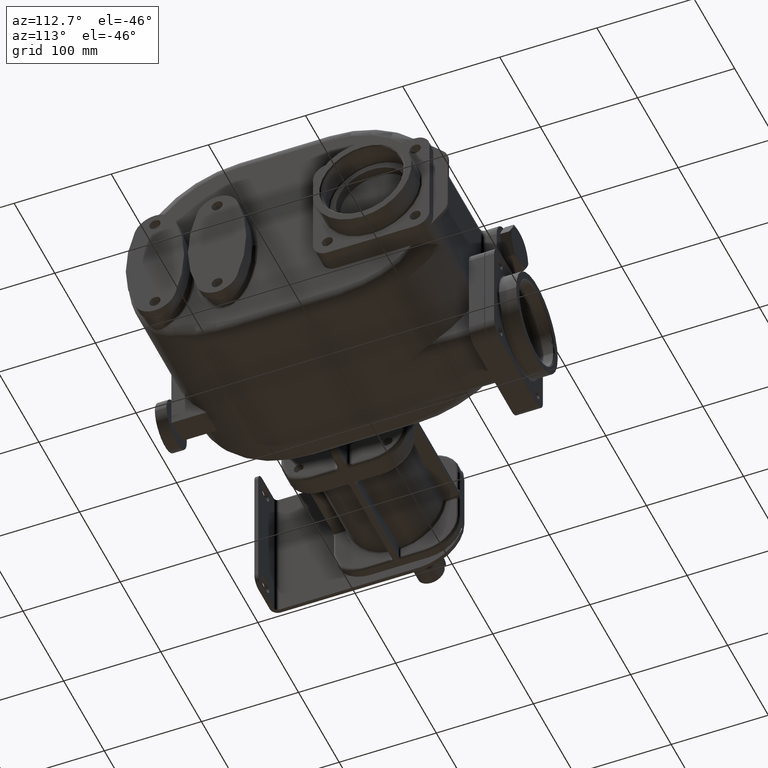
[diagram: clean part render]
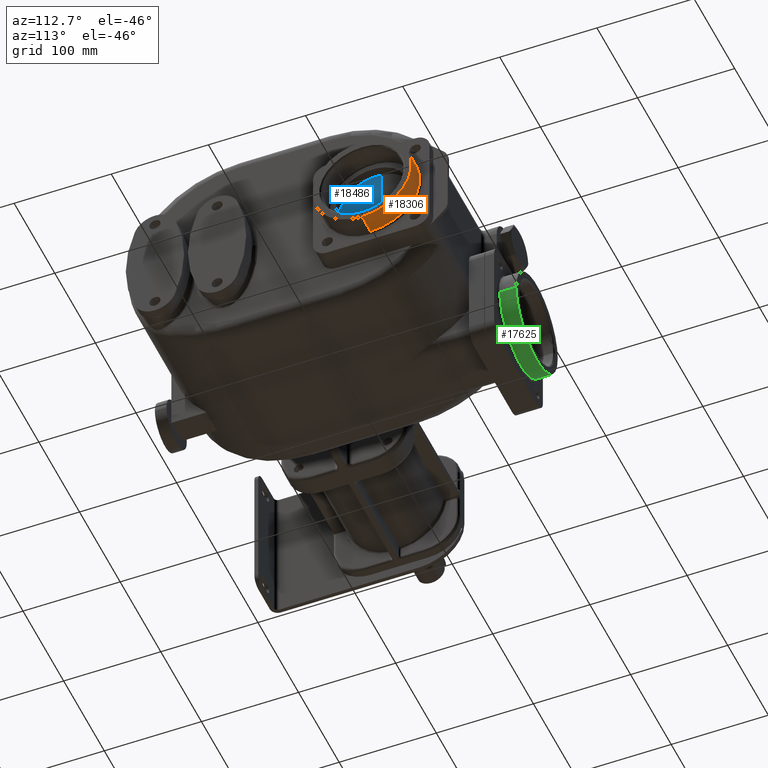
[diagram: same view with three faces highlighted in distinct colors, each labeled with its STEP entity id]
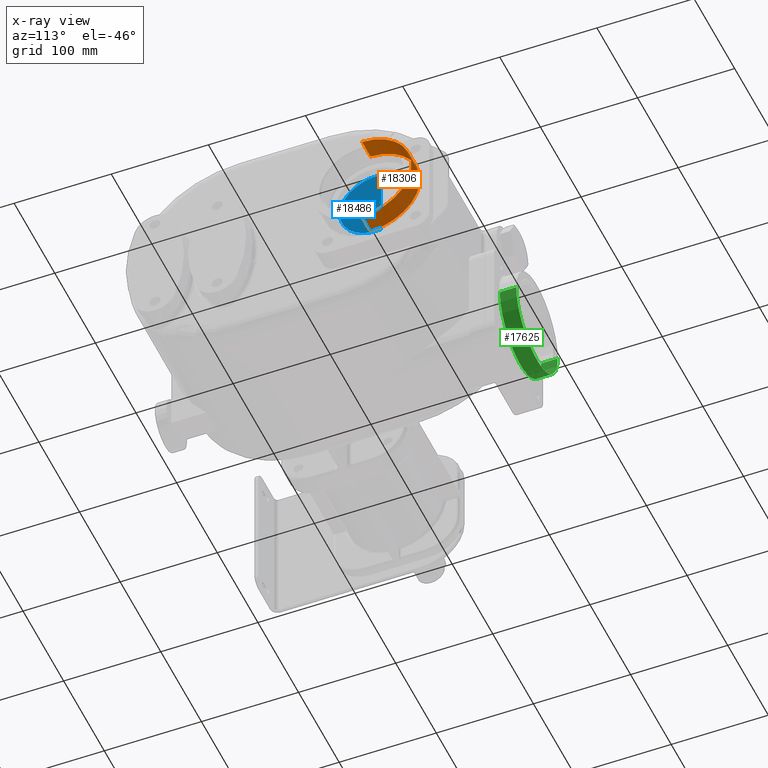
[diagram: x-ray of the same camera — body ghosted, the three highlighted faces saturated]
A machine part, auxiliary view with three faces highlighted in distinct colors.
The next image is the same camera in x-ray (body ghosted, the three faces saturated) — at least one of them is partly hidden behind the body in this view.
Their STEP definitions:

[orange] entity #18306 — the highlighted cylindrical surface (partial cylindrical patch) has radius 51 mm, axis along (1, 0, 0).
#1112=DIRECTION('',(-1.E0,0.E0,0.E0));
#1113=VECTOR('',#1112,2.1E1);
#1114=CARTESIAN_POINT('',(1.775E2,2.65E2,3.7E1));
#1115=LINE('',#1114,#1113);
#1116=DIRECTION('',(-1.E0,0.E0,0.E0));
#1117=VECTOR('',#1116,2.1E1);
#1118=CARTESIAN_POINT('',(1.775E2,2.65E2,-6.5E1));
#1119=LINE('',#1118,#1117);
#1120=CARTESIAN_POINT('',(1.565E2,2.65E2,-1.4E1));
#1121=DIRECTION('',(1.E0,0.E0,0.E0));
#1122=DIRECTION('',(0.E0,0.E0,-1.E0));
#1123=AXIS2_PLACEMENT_3D('',#1120,#1121,#1122);
#1125=CARTESIAN_POINT('',(1.775E2,2.65E2,-1.4E1));
#1126=DIRECTION('',(1.E0,0.E0,0.E0));
#1127=DIRECTION('',(0.E0,0.E0,-1.E0));
#1128=AXIS2_PLACEMENT_3D('',#1125,#1126,#1127);
#15255=CARTESIAN_POINT('',(1.775E2,2.65E2,-6.5E1));
#15256=CARTESIAN_POINT('',(1.775E2,2.65E2,3.7E1));
#15257=VERTEX_POINT('',#15255);
#15258=VERTEX_POINT('',#15256);
#15323=CARTESIAN_POINT('',(1.565E2,2.65E2,-6.5E1));
#15324=CARTESIAN_POINT('',(1.565E2,2.65E2,3.7E1));
#15325=VERTEX_POINT('',#15323);
#15326=VERTEX_POINT('',#15324);
#18294=CARTESIAN_POINT('',(1.355E2,2.65E2,-1.4E1));
#18295=DIRECTION('',(1.E0,0.E0,0.E0));
#18296=DIRECTION('',(0.E0,0.E0,-1.E0));
#18297=AXIS2_PLACEMENT_3D('',#18294,#18295,#18296);
#18298=CYLINDRICAL_SURFACE('',#18297,5.1E1);
#18299=ORIENTED_EDGE('',*,*,#18259,.F.);
#18300=ORIENTED_EDGE('',*,*,#18289,.F.);
#18302=ORIENTED_EDGE('',*,*,#18301,.T.);
#18303=ORIENTED_EDGE('',*,*,#18285,.T.);
#18304=EDGE_LOOP('',(#18299,#18300,#18302,#18303));
#18305=FACE_OUTER_BOUND('',#18304,.F.);
#18306=ADVANCED_FACE('',(#18305),#18298,.T.);
#1124=CIRCLE('',#1123,5.1E1);
#1129=CIRCLE('',#1128,5.1E1);
#18259=EDGE_CURVE('',#15325,#15326,#1124,.T.);
#18285=EDGE_CURVE('',#15258,#15326,#1115,.T.);
#18289=EDGE_CURVE('',#15257,#15325,#1119,.T.);
#18301=EDGE_CURVE('',#15257,#15258,#1129,.T.);

[blue] entity #18486 — the highlighted planar face has unit normal (1, 0, 0).
#1239=CARTESIAN_POINT('',(1.425E2,2.65E2,-1.4E1));
#1240=DIRECTION('',(1.E0,0.E0,0.E0));
#1241=DIRECTION('',(0.E0,-1.E0,0.E0));
#1242=AXIS2_PLACEMENT_3D('',#1239,#1240,#1241);
#1244=CARTESIAN_POINT('',(1.425E2,2.65E2,-1.4E1));
#1245=DIRECTION('',(1.E0,0.E0,0.E0));
#1246=DIRECTION('',(0.E0,1.367443808045E-1,9.906063669886E-1));
#1247=AXIS2_PLACEMENT_3D('',#1244,#1245,#1246);
#1249=DIRECTION('',(0.E0,0.E0,1.E0));
#1250=VECTOR('',#1249,7.429547752415E1);
#1251=CARTESIAN_POINT('',(1.425E2,2.701279142802E2,-5.114773876207E1));
#1252=LINE('',#1251,#1250);
#15327=CARTESIAN_POINT('',(1.425E2,2.275E2,-1.4E1));
#15328=CARTESIAN_POINT('',(1.425E2,2.701279142802E2,-5.114773876207E1));
#15329=VERTEX_POINT('',#15327);
#15330=VERTEX_POINT('',#15328);
#15331=CARTESIAN_POINT('',(1.425E2,2.701279142802E2,2.314773876207E1));
#15332=VERTEX_POINT('',#15331);
#18474=CARTESIAN_POINT('',(1.425E2,1.2E2,0.E0));
#18475=DIRECTION('',(1.E0,0.E0,0.E0));
#18476=DIRECTION('',(0.E0,0.E0,-1.E0));
#18477=AXIS2_PLACEMENT_3D('',#18474,#18475,#18476);
#18478=PLANE('',#18477);
#18479=ORIENTED_EDGE('',*,*,#18462,.F.);
#18481=ORIENTED_EDGE('',*,*,#18480,.F.);
#18483=ORIENTED_EDGE('',*,*,#18482,.F.);
#18484=EDGE_LOOP('',(#18479,#18481,#18483));
#18485=FACE_OUTER_BOUND('',#18484,.F.);
#18486=ADVANCED_FACE('',(#18485),#18478,.T.);
#1243=CIRCLE('',#1242,3.75E1);
#1248=CIRCLE('',#1247,3.75E1);
#18462=EDGE_CURVE('',#15329,#15330,#1243,.T.);
#18480=EDGE_CURVE('',#15332,#15329,#1248,.T.);
#18482=EDGE_CURVE('',#15330,#15332,#1252,.T.);

[green] entity #17625 — the highlighted cylindrical surface (partial cylindrical patch) has radius 51 mm, axis along (0, 1, 0).
#453=DIRECTION('',(0.E0,-1.E0,0.E0));
#454=VECTOR('',#453,1.7E1);
#455=CARTESIAN_POINT('',(-5.1E1,3.71E2,-8.3E1));
#456=LINE('',#455,#454);
#457=DIRECTION('',(0.E0,-1.E0,0.E0));
#458=VECTOR('',#457,1.7E1);
#459=CARTESIAN_POINT('',(5.1E1,3.71E2,-8.3E1));
#460=LINE('',#459,#458);
#461=CARTESIAN_POINT('',(0.E0,3.54E2,-8.3E1));
#462=DIRECTION('',(0.E0,1.E0,0.E0));
#463=DIRECTION('',(1.E0,0.E0,0.E0));
#464=AXIS2_PLACEMENT_3D('',#461,#462,#463);
#466=CARTESIAN_POINT('',(0.E0,3.71E2,-8.3E1));
#467=DIRECTION('',(0.E0,1.E0,0.E0));
#468=DIRECTION('',(1.E0,0.E0,0.E0));
#469=AXIS2_PLACEMENT_3D('',#466,#467,#468);
#15103=CARTESIAN_POINT('',(5.1E1,3.71E2,-8.3E1));
#15104=CARTESIAN_POINT('',(-5.1E1,3.71E2,-8.3E1));
#15105=VERTEX_POINT('',#15103);
#15106=VERTEX_POINT('',#15104);
#15143=CARTESIAN_POINT('',(5.1E1,3.54E2,-8.3E1));
#15144=CARTESIAN_POINT('',(-5.1E1,3.54E2,-8.3E1));
#15145=VERTEX_POINT('',#15143);
#15146=VERTEX_POINT('',#15144);
#17613=CARTESIAN_POINT('',(0.E0,3.395E2,-8.3E1));
#17614=DIRECTION('',(0.E0,1.E0,0.E0));
#17615=DIRECTION('',(1.E0,0.E0,0.E0));
#17616=AXIS2_PLACEMENT_3D('',#17613,#17614,#17615);
#17617=CYLINDRICAL_SURFACE('',#17616,5.1E1);
#17618=ORIENTED_EDGE('',*,*,#17578,.F.);
#17619=ORIENTED_EDGE('',*,*,#17608,.F.);
#17621=ORIENTED_EDGE('',*,*,#17620,.T.);
#17622=ORIENTED_EDGE('',*,*,#17604,.T.);
#17623=EDGE_LOOP('',(#17618,#17619,#17621,#17622));
#17624=FACE_OUTER_BOUND('',#17623,.F.);
#17625=ADVANCED_FACE('',(#17624),#17617,.T.);
#465=CIRCLE('',#464,5.1E1);
#470=CIRCLE('',#469,5.1E1);
#17578=EDGE_CURVE('',#15145,#15146,#465,.T.);
#17604=EDGE_CURVE('',#15106,#15146,#456,.T.);
#17608=EDGE_CURVE('',#15105,#15145,#460,.T.);
#17620=EDGE_CURVE('',#15105,#15106,#470,.T.);